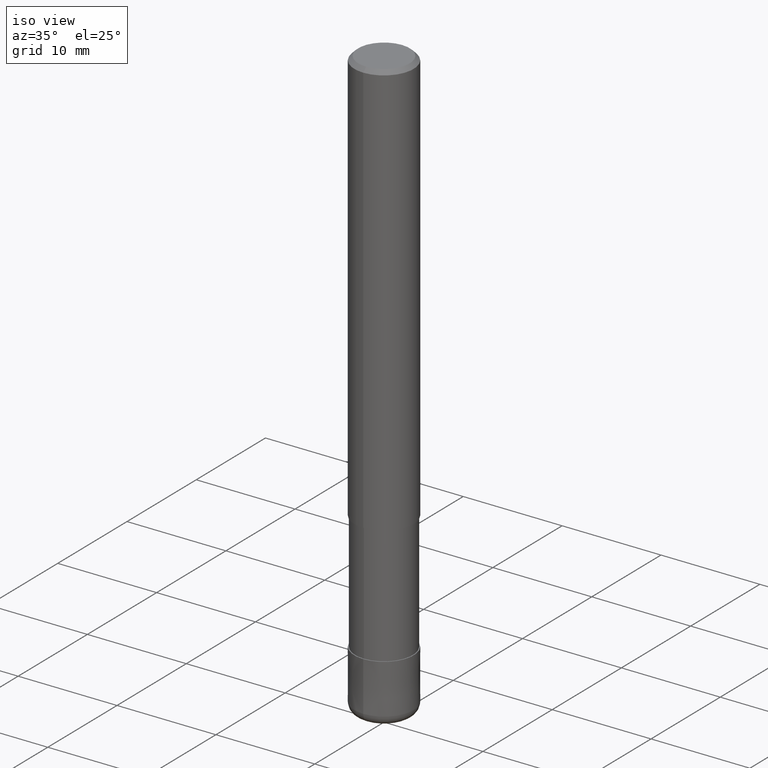
[diagram: clean part render]
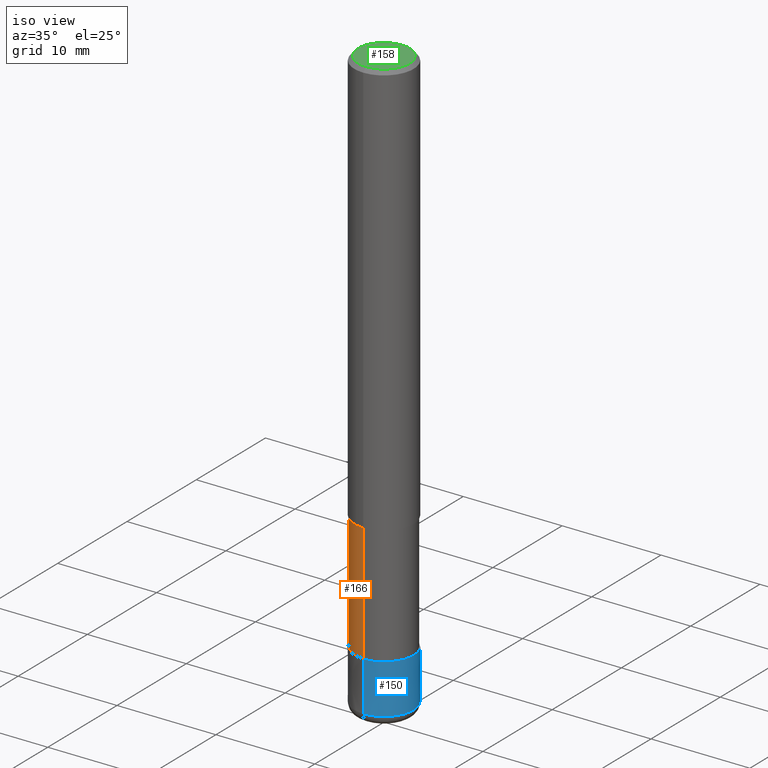
[diagram: same view with three faces highlighted in distinct colors, each labeled with its STEP entity id]
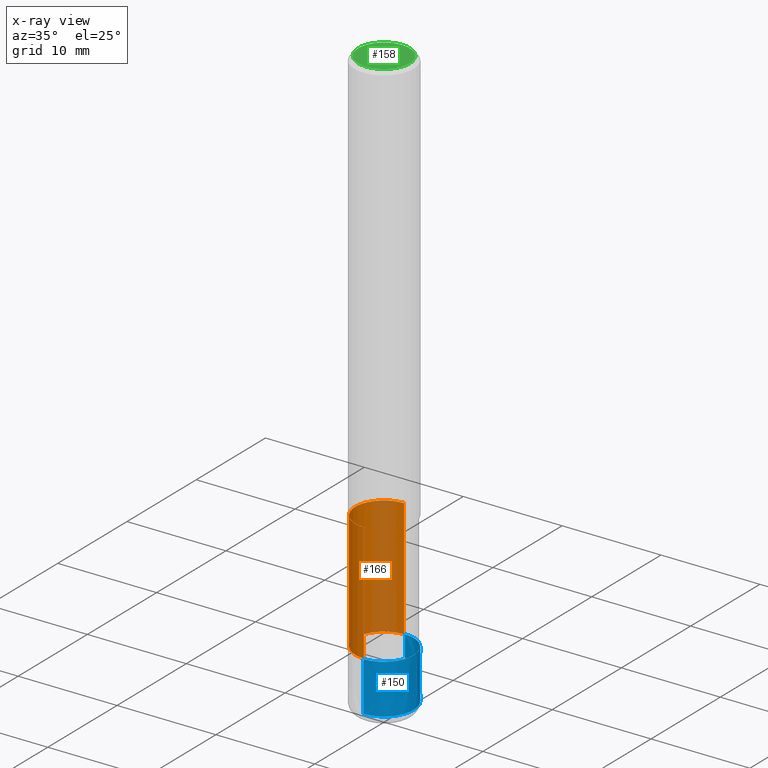
[diagram: x-ray of the same camera — body ghosted, the three highlighted faces saturated]
A machine part, iso view with three faces highlighted in distinct colors.
The next image is the same camera in x-ray (body ghosted, the three faces saturated) — at least one of them is partly hidden behind the body in this view.
Their STEP definitions:

[orange] entity #166 — the highlighted cylindrical surface (edge-blend (fillet) strip) has radius 2.9099 mm, axis along (-0, -0, 1).
#100=VERTEX_POINT('',#240);
#126=EDGE_CURVE('',#204,#142,#270,.T.);
#142=VERTEX_POINT('',#286);
#166=ADVANCED_FACE('',(#315),#316,.T.);
#180=EDGE_CURVE('',#100,#204,#331,.T.);
#182=VERTEX_POINT('',#333);
#194=EDGE_CURVE('',#182,#100,#346,.T.);
#198=EDGE_CURVE('',#182,#142,#350,.T.);
#204=VERTEX_POINT('',#357);
#240=CARTESIAN_POINT('',(3.56354325930543E-016,-2.90995,-42.0));
#270=LINE('',#426,#427);
#286=CARTESIAN_POINT('',(0.0,2.90995,-54.0));
#315=FACE_OUTER_BOUND('',#475,.T.);
#316=CYLINDRICAL_SURFACE('',#476,2.90995);
#331=CIRCLE('',#499,2.90995);
#333=CARTESIAN_POINT('',(3.56354325930543E-016,-2.90995,-54.0));
#346=LINE('',#517,#518);
#350=CIRCLE('',#525,2.90995);
#357=CARTESIAN_POINT('',(0.0,2.90995,-42.0));
#426=CARTESIAN_POINT('',(-3.56354325930543E-016,2.90995,-48.0));
#427=VECTOR('',#608,1.0);
#475=EDGE_LOOP('',(#657,#658,#659,#660));
#476=AXIS2_PLACEMENT_3D('',#661,#662,#663);
#499=AXIS2_PLACEMENT_3D('',#683,#684,#685);
#517=CARTESIAN_POINT('',(3.56354325930543E-016,-2.90995,-48.0));
#518=VECTOR('',#697,1.0);
#525=AXIS2_PLACEMENT_3D('',#699,#700,#701);
#608=DIRECTION('',(0.0,0.0,-1.0));
#657=ORIENTED_EDGE('',*,*,#126,.T.);
#658=ORIENTED_EDGE('',*,*,#198,.F.);
#659=ORIENTED_EDGE('',*,*,#194,.T.);
#660=ORIENTED_EDGE('',*,*,#180,.T.);
#661=CARTESIAN_POINT('',(0.0,0.0,-48.0));
#662=DIRECTION('',(-0.0,-0.0,1.0));
#663=DIRECTION('',(0.0,1.0,0.0));
#683=CARTESIAN_POINT('',(0.0,0.0,-42.0));
#684=DIRECTION('',(0.0,0.0,-1.0));
#685=DIRECTION('',(0.0,1.0,0.0));
#697=DIRECTION('',(-0.0,-0.0,1.0));
#699=CARTESIAN_POINT('',(0.0,0.0,-54.0));
#700=DIRECTION('',(0.0,0.0,-1.0));
#701=DIRECTION('',(0.0,1.0,0.0));

[blue] entity #150 — the highlighted conical surface has half-angle 0.001 deg.
#98=VERTEX_POINT('',#238);
#112=EDGE_CURVE('',#134,#156,#255,.T.);
#122=EDGE_CURVE('',#134,#98,#266,.T.);
#130=VERTEX_POINT('',#274);
#134=VERTEX_POINT('',#278);
#150=ADVANCED_FACE('',(#295),#296,.T.);
#156=VERTEX_POINT('',#303);
#170=EDGE_CURVE('',#156,#130,#320,.T.);
#192=EDGE_CURVE('',#130,#98,#344,.T.);
#238=CARTESIAN_POINT('',(3.67369660083175E-016,-2.9999,-54.0));
#255=LINE('',#404,#405);
#266=CIRCLE('',#420,2.9999);
#274=CARTESIAN_POINT('',(3.67381906146713E-016,-3.0,-59.0));
#278=CARTESIAN_POINT('',(0.0,2.9999,-54.0));
#295=FACE_OUTER_BOUND('',#453,.T.);
#296=CONICAL_SURFACE('',#454,2.99995,1.99999999973755E-005);
#303=CARTESIAN_POINT('',(0.0,3.0,-59.0));
#320=CIRCLE('',#483,3.0);
#344=LINE('',#513,#514);
#404=CARTESIAN_POINT('',(-3.67375783114944E-016,2.99995,-56.5));
#405=VECTOR('',#589,1.0);
#420=AXIS2_PLACEMENT_3D('',#602,#603,#604);
#453=EDGE_LOOP('',(#625,#626,#627,#628));
#454=AXIS2_PLACEMENT_3D('',#629,#630,#631);
#483=AXIS2_PLACEMENT_3D('',#665,#666,#667);
#513=CARTESIAN_POINT('',(3.67375783114944E-016,-2.99995,-56.5));
#514=VECTOR('',#696,1.0);
#589=DIRECTION('',(-2.44921270716008E-021,1.99999999960422E-005,-0.9999999998));
#602=CARTESIAN_POINT('',(0.0,0.0,-54.0));
#603=DIRECTION('',(0.0,0.0,-1.0));
#604=DIRECTION('',(0.0,1.0,0.0));
#625=ORIENTED_EDGE('',*,*,#112,.F.);
#626=ORIENTED_EDGE('',*,*,#122,.T.);
#627=ORIENTED_EDGE('',*,*,#192,.F.);
#628=ORIENTED_EDGE('',*,*,#170,.F.);
#629=CARTESIAN_POINT('',(0.0,0.0,-56.5));
#630=DIRECTION('',(0.0,-0.0,-1.0));
#631=DIRECTION('',(0.0,1.0,0.0));
#665=CARTESIAN_POINT('',(0.0,0.0,-59.0));
#666=DIRECTION('',(0.0,0.0,-1.0));
#667=DIRECTION('',(0.0,1.0,0.0));
#696=DIRECTION('',(-2.44921270716008E-021,1.99999999960422E-005,0.9999999998));

[green] entity #158 — the highlighted planar face has unit normal (-0, 0, 1).
#114=VERTEX_POINT('',#257);
#146=EDGE_CURVE('',#208,#114,#290,.T.);
#158=ADVANCED_FACE('',(#305),#306,.T.);
#162=EDGE_CURVE('',#114,#208,#311,.T.);
#208=VERTEX_POINT('',#361);
#257=CARTESIAN_POINT('',(3.18397651993818E-016,-2.6,0.0));
#290=CIRCLE('',#448,2.6);
#305=FACE_OUTER_BOUND('',#464,.T.);
#306=PLANE('',#465);
#311=CIRCLE('',#471,2.6);
#361=CARTESIAN_POINT('',(0.0,2.6,0.0));
#448=AXIS2_PLACEMENT_3D('',#613,#614,#615);
#464=EDGE_LOOP('',(#642,#643));
#465=AXIS2_PLACEMENT_3D('',#644,#645,#646);
#471=AXIS2_PLACEMENT_3D('',#653,#654,#655);
#613=CARTESIAN_POINT('',(0.0,0.0,0.0));
#614=DIRECTION('',(0.0,0.0,-1.0));
#615=DIRECTION('',(0.0,1.0,0.0));
#642=ORIENTED_EDGE('',*,*,#146,.F.);
#643=ORIENTED_EDGE('',*,*,#162,.F.);
#644=CARTESIAN_POINT('',(0.0,1.3,0.0));
#645=DIRECTION('',(-0.0,0.0,1.0));
#646=DIRECTION('',(0.0,-1.0,0.0));
#653=CARTESIAN_POINT('',(0.0,0.0,0.0));
#654=DIRECTION('',(0.0,0.0,-1.0));
#655=DIRECTION('',(0.0,1.0,0.0));